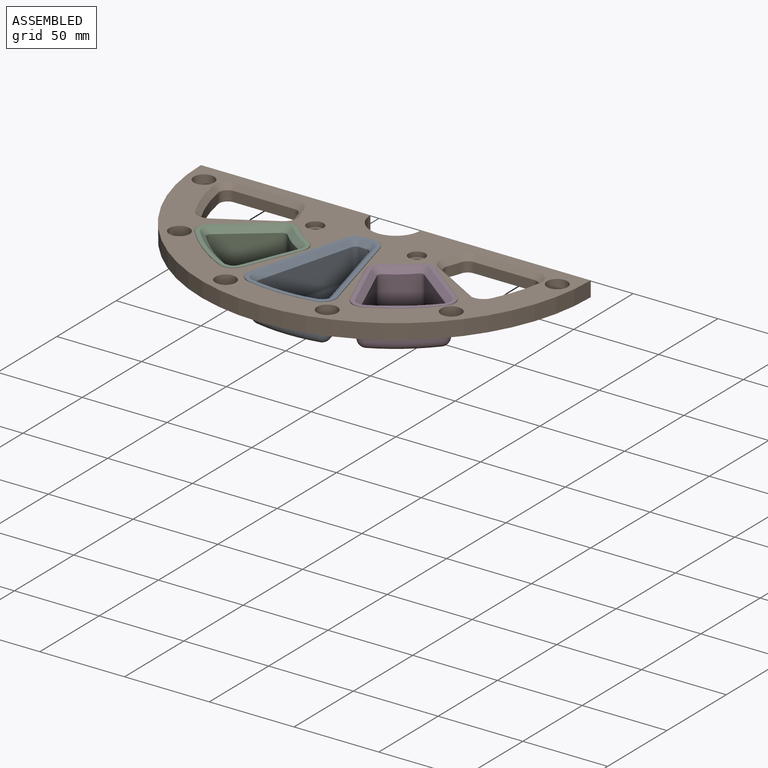
[diagram: assembled view]
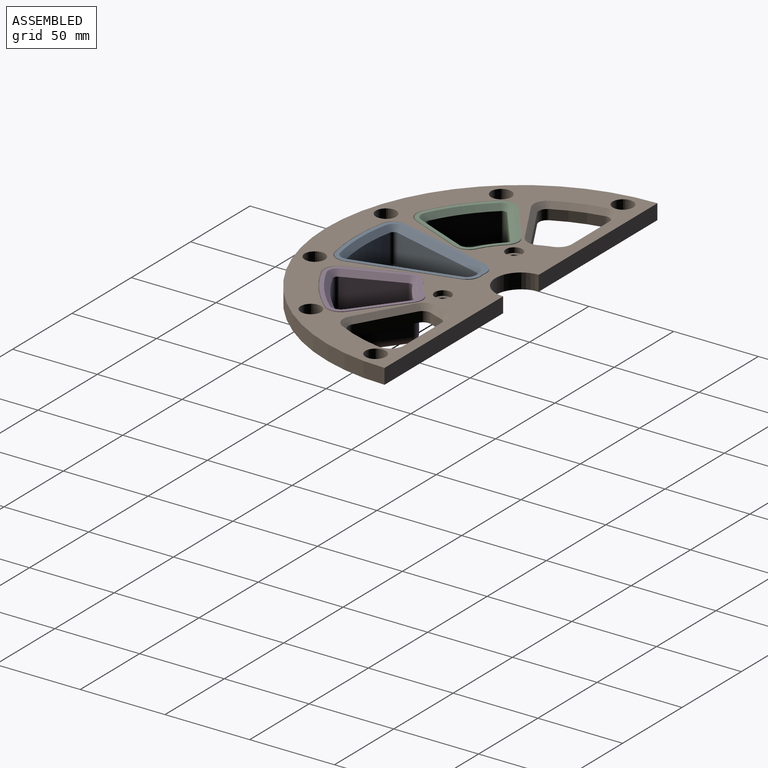
[diagram: assembled view, second angle]
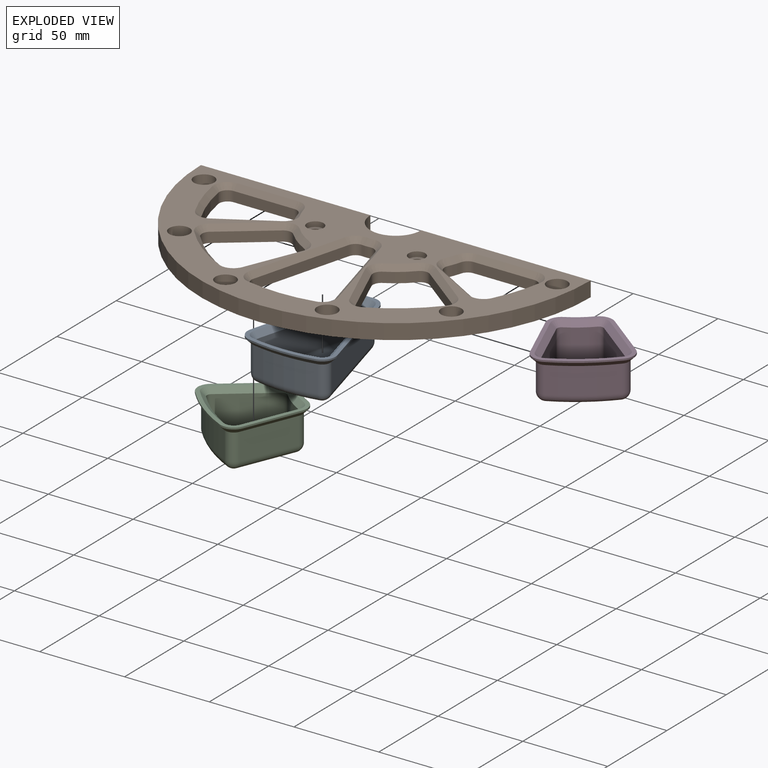
[diagram: exploded view]
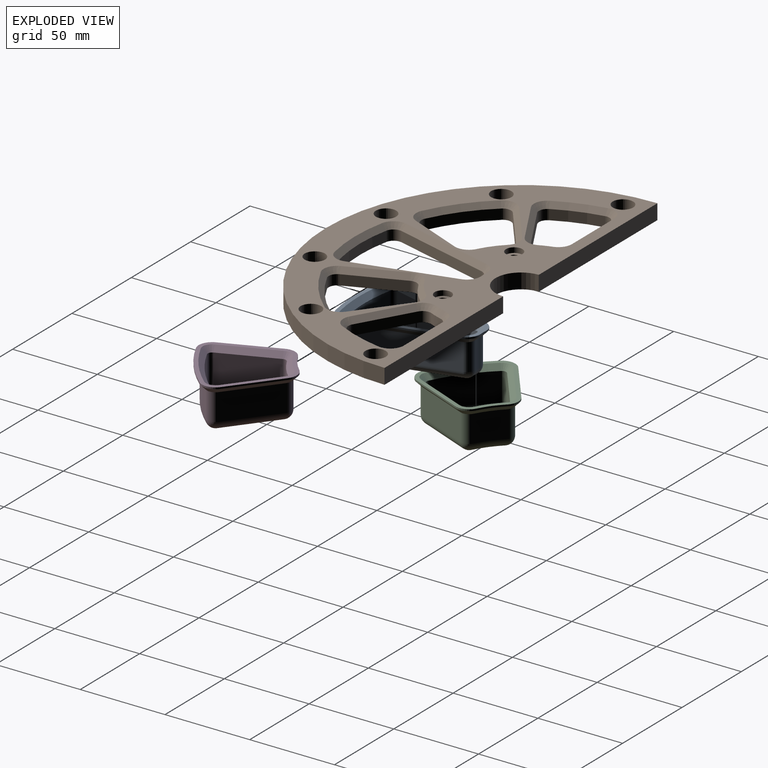
[diagram: exploded view, second angle]
ASSEMBLY  parts=4 mates=2
PART A: 59 faces, bbox 51.9x80.1x25 mm
  f0: plane 75.31x51.86mm, normal (0,0,1), area 487mm2, adj f18,f19,f20,f21,f22,f23,f24,f25
  f1: plane 57.49x17mm, normal (0.97,-0.26,0), area 1011.8mm2, adj f6,f10,f16,f51
  f2: cylinder r=92.2mm len=36.9mm, axis (0,0,-1), area 631.6mm2, adj f8,f10,f12,f55
  f3: plane 57.49x17mm, normal (-0.97,-0.26,0), area 1011.8mm2, adj f9,f12,f14,f58
  f4: cylinder r=27.8mm len=17mm, axis (0,0,-1), area 78.7mm2, adj f7,f14,f16,f54
  f5: plane 59.31x35.86mm, normal (0,0,1), area 1219.3mm2, adj f6,f7,f8,f9
  f6: cylinder r=2.6mm len=58.17mm, axis (-0.26,-0.97,0), area 243.1mm2, adj f1,f5,f11,f17
  f7: torus R=30.4mm, axis (0,0,1), area 19.5mm2, adj f4,f5,f15,f17
  f8: torus R=89.6mm, axis (0,0,1), area 150.2mm2, adj f2,f5,f11,f13
  f9: cylinder r=2.6mm len=58.17mm, axis (-0.26,0.97,0), area 243.1mm2, adj f3,f5,f13,f15
  f10: cylinder r=2.6mm len=17mm, axis (0,0,-1), area 72.1mm2, adj f1,f2,f11,f53
  f11: sphere r=2.6mm, area 11mm2, adj f6,f8,f10
  f12: cylinder r=2.6mm len=17mm, axis (0,0,-1), area 72.1mm2, adj f2,f3,f13,f57
  f13: sphere r=2.6mm, area 11mm2, adj f8,f9,f12
  f14: cylinder r=2.6mm len=17mm, axis (0,0,-1), area 61.5mm2, adj f3,f4,f15,f56
  f15: sphere r=2.6mm, area 9.4mm2, adj f7,f9,f14
  f16: cylinder r=2.6mm len=17mm, axis (0,0,-1), area 61.5mm2, adj f1,f4,f17,f52
  f17: sphere r=2.6mm, area 9.4mm2, adj f6,f7,f16
  f18: cylinder r=8mm len=8.39mm, axis (0,0,1), area 11.1mm2, adj f0,f19,f25,f44
  f19: plane 57.49x15.41mm, normal (-0.97,0.26,0), area 59.5mm2, adj f0,f18,f20,f43
  f20: cylinder r=8mm len=9.91mm, axis (0,0,1), area 13mm2, adj f0,f19,f21,f45
  f21: cylinder r=97.6mm len=39.07mm, axis (0,0,1), area 39.3mm2, adj f0,f20,f22,f47
  f22: cylinder r=8mm len=9.91mm, axis (0,0,1), area 13mm2, adj f0,f21,f23,f49
  f23: plane 57.49x15.41mm, normal (0.97,0.26,0), area 59.5mm2, adj f0,f22,f24,f50
  f24: cylinder r=8mm len=8.39mm, axis (0,0,1), area 11.1mm2, adj f0,f23,f25,f48
  f25: cylinder r=22.4mm len=3.72mm, axis (0,0,1), area 3.7mm2, adj f0,f18,f24,f46
  f26: plane 59.31x35.86mm, normal (0,0,-1), area 1219.3mm2, adj f27,f28,f29,f30
  f27: cylinder r=5mm len=58.79mm, axis (-0.26,-0.97,0), area 467.5mm2, adj f26,f31,f34,f42
  f28: torus R=89.6mm, axis (0,0,1), area 293.7mm2, adj f26,f31,f32,f41
  f29: cylinder r=5mm len=58.79mm, axis (-0.26,0.97,0), area 467.5mm2, adj f26,f32,f33,f39
  f30: torus R=30.4mm, axis (0,0,1), area 35.6mm2, adj f26,f33,f34,f38
  f31: sphere r=5mm, area 40.8mm2, adj f27,f28,f40
  f32: sphere r=5mm, area 40.8mm2, adj f28,f29,f35
  f33: sphere r=5mm, area 34.8mm2, adj f29,f30,f36
  f34: sphere r=5mm, area 34.8mm2, adj f27,f30,f37
  f35: cylinder r=5mm len=16mm, axis (0,0,-1), area 130.5mm2, adj f32,f39,f41,f49
  f36: cylinder r=5mm len=16mm, axis (0,0,-1), area 111.4mm2, adj f33,f38,f39,f48
  f37: cylinder r=5mm len=16mm, axis (0,0,-1), area 111.4mm2, adj f34,f38,f42,f44
  f38: cylinder r=25.4mm len=16mm, axis (0,0,-1), area 67.6mm2, adj f30,f36,f37,f46
  f39: plane 57.49x16mm, normal (0.97,0.26,0), area 952.3mm2, adj f29,f35,f36,f50
  f40: cylinder r=5mm len=16mm, axis (0,0,-1), area 130.5mm2, adj f31,f41,f42,f45
  f41: cylinder r=94.6mm len=37.87mm, axis (0,0,-1), area 610mm2, adj f28,f35,f40,f47
  f42: plane 57.49x16mm, normal (-0.97,0.26,0), area 952.3mm2, adj f27,f37,f40,f43
  f43: plane 58.27x18.3mm, normal (-0.68,0.18,-0.71), area 252.5mm2, adj f19,f42,f44,f45
  f44: cone r=8mm half-angle=45deg, axis (0,0,1), area 38.4mm2, adj f18,f37,f43,f46
  f45: cone r=8mm half-angle=45deg, axis (0,0,1), area 45mm2, adj f20,f40,f43,f47
  f46: cone r=25.4mm half-angle=45deg, axis (0,0,-1), area 16.9mm2, adj f25,f38,f44,f48
  f47: cone r=97.6mm half-angle=45deg, axis (0,0,1), area 164.3mm2, adj f21,f41,f45,f49
  f48: cone r=8mm half-angle=45deg, axis (0,0,1), area 38.4mm2, adj f24,f36,f46,f50
  f49: cone r=8mm half-angle=45deg, axis (0,0,1), area 45mm2, adj f22,f35,f47,f50
  f50: plane 58.27x18.3mm, normal (0.68,0.18,-0.71), area 252.5mm2, adj f23,f39,f48,f49
  f51: plane 58.27x18.3mm, normal (0.68,-0.18,0.71), area 252.5mm2, adj f0,f1,f52,f53
  f52: cone r=2.6mm half-angle=45deg, axis (0,0,1), area 24.2mm2, adj f0,f16,f51,f54
  f53: cone r=2.6mm half-angle=45deg, axis (0,0,1), area 28.4mm2, adj f0,f10,f51,f55
  f54: cone r=24.8mm half-angle=45deg, axis (0,0,-1), area 18.6mm2, adj f0,f4,f52,f56
  f55: cone r=92.2mm half-angle=45deg, axis (0,0,1), area 160.2mm2, adj f0,f2,f53,f57
  f56: cone r=2.6mm half-angle=45deg, axis (0,0,1), area 24.2mm2, adj f0,f14,f54,f58
  f57: cone r=2.6mm half-angle=45deg, axis (0,0,1), area 28.4mm2, adj f0,f12,f55,f58
  f58: plane 58.27x18.3mm, normal (-0.68,-0.18,0.71), area 252.5mm2, adj f0,f3,f56,f57
PART B: 102 faces, bbox 230x115x9 mm
  f0: plane 230x115mm, normal (0,0,1), area 9068.6mm2, adj f4,f5,f6,f7,f9,f11,f56,f57
  f1: plane 230x115mm, normal (0,0,-1), area 11610.8mm2, adj f4,f5,f6,f7,f12,f14,f16,f17
  f2: cylinder r=2.75mm len=5.5mm, axis (0,0,1), area 69.1mm2, adj f8,f15
  f3: cylinder r=2.75mm len=5.5mm, axis (0,0,1), area 69.1mm2, adj f10,f13
  f4: plane 100x9mm, normal (0,1,0), area 900mm2, adj f0,f1,f5,f7
  f5: cylinder r=115mm len=230mm, axis (0,0,-1), area 3251.5mm2, adj f0,f1,f4,f6
  f6: plane 100x9mm, normal (0,1,0), area 900mm2, adj f0,f1,f5,f7
  f7: cylinder r=15mm len=30mm, axis (0,0,-1), area 424.1mm2, adj f0,f1,f4,f6
  f8: plane 9.75x9.75mm, normal (0,0,1), area 50.9mm2, adj f2,f9
  f9: cylinder r=4.88mm len=9.75mm, axis (0,0,1), area 91.9mm2, adj f0,f8
  f10: plane 9.75x9.75mm, normal (0,0,1), area 50.9mm2, adj f3,f11
  f11: cylinder r=4.88mm len=9.75mm, axis (0,0,1), area 91.9mm2, adj f0,f10
  f12: cylinder r=4.1mm len=8.2mm, axis (0,0,-1), area 51.5mm2, adj f1,f13
  f13: plane 8.2x8.2mm, normal (0,0,-1), area 29.1mm2, adj f3,f12
  f14: cylinder r=4.1mm len=8.2mm, axis (0,0,-1), area 51.5mm2, adj f1,f15
  f15: plane 8.2x8.2mm, normal (0,0,-1), area 29.1mm2, adj f2,f14
  f16: plane 58.23x15.6mm, normal (0.97,-0.26,0), area 361.7mm2, adj f1,f52,f55,f74
  f17: cylinder r=95mm len=38.9mm, axis (0,0,1), area 235.1mm2, adj f1,f54,f55,f78
  f18: plane 58.23x15.6mm, normal (-0.97,-0.26,0), area 361.7mm2, adj f1,f53,f54,f77
  f19: cylinder r=25mm len=6mm, axis (0,0,1), area 28.3mm2, adj f1,f52,f53,f73
  f20: cylinder r=95mm len=30.86mm, axis (0,0,1), area 235.1mm2, adj f1,f44,f47,f86
  f21: plane 32.42x13.43mm, normal (-0.92,0.38,0), area 210.5mm2, adj f1,f46,f47,f85
  f22: cylinder r=50mm len=13.48mm, axis (0,0,1), area 102.5mm2, adj f1,f45,f46,f81
  f23: plane 27.84x21.36mm, normal (0.61,-0.79,0), area 210.5mm2, adj f1,f44,f45,f82
  f24: plane 35.83x6mm, normal (0,-1,0), area 215mm2, adj f1,f48,f51,f89
  f25: cylinder r=95mm len=27.02mm, axis (0,0,1), area 171.3mm2, adj f1,f48,f49,f90
  f26: plane 30.39x17.54mm, normal (-0.5,0.87,0), area 210.5mm2, adj f1,f49,f50,f94
  f27: cylinder r=50mm len=7.32mm, axis (0,0,1), area 46.9mm2, adj f1,f50,f51,f93
  f28: plane 35.83x6mm, normal (0,-1,0), area 215mm2, adj f1,f36,f39,f57
  f29: cylinder r=50mm len=7.32mm, axis (0,0,1), area 46.9mm2, adj f1,f38,f39,f58
  f30: plane 30.39x17.54mm, normal (0.5,0.87,0), area 210.5mm2, adj f1,f37,f38,f62
  f31: cylinder r=95mm len=27.02mm, axis (0,0,1), area 171.3mm2, adj f1,f36,f37,f61
  f32: plane 27.84x21.36mm, normal (-0.61,-0.79,0), area 210.5mm2, adj f1,f40,f43,f70
  f33: cylinder r=50mm len=13.48mm, axis (0,0,1), area 102.5mm2, adj f1,f42,f43,f69
  f34: plane 32.42x13.43mm, normal (0.92,0.38,0), area 210.5mm2, adj f1,f41,f42,f65
  f35: cylinder r=95mm len=30.86mm, axis (0,0,1), area 235.1mm2, adj f1,f40,f41,f66
  f36: cylinder r=5mm len=6mm, axis (0,0,1), area 52.1mm2, adj f1,f28,f31,f59
  f37: cylinder r=5mm len=6.96mm, axis (0,0,1), area 48.8mm2, adj f1,f30,f31,f63
  f38: cylinder r=5mm len=6.43mm, axis (0,0,1), area 44.4mm2, adj f1,f29,f30,f60
  f39: cylinder r=5mm len=6mm, axis (0,0,1), area 38.8mm2, adj f1,f28,f29,f56
  f40: cylinder r=5mm len=7.23mm, axis (0,0,1), area 48.8mm2, adj f1,f32,f35,f68
  f41: cylinder r=5mm len=6.79mm, axis (0,0,1), area 48.8mm2, adj f1,f34,f35,f64
  f42: cylinder r=5mm len=6.34mm, axis (0,0,1), area 44.4mm2, adj f1,f33,f34,f67
  f43: cylinder r=5mm len=6.72mm, axis (0,0,1), area 44.4mm2, adj f1,f32,f33,f71
  f44: cylinder r=5mm len=7.23mm, axis (0,0,1), area 48.8mm2, adj f1,f20,f23,f84
  f45: cylinder r=5mm len=6.72mm, axis (0,0,1), area 44.4mm2, adj f1,f22,f23,f80
  f46: cylinder r=5mm len=6.34mm, axis (0,0,1), area 44.4mm2, adj f1,f21,f22,f83
  f47: cylinder r=5mm len=6.79mm, axis (0,0,1), area 48.8mm2, adj f1,f20,f21,f87
  f48: cylinder r=5mm len=6mm, axis (0,0,1), area 52.1mm2, adj f1,f24,f25,f88
  f49: cylinder r=5mm len=6.96mm, axis (0,0,1), area 48.8mm2, adj f1,f25,f26,f92
  f50: cylinder r=5mm len=6.43mm, axis (0,0,1), area 44.4mm2, adj f1,f26,f27,f95
  f51: cylinder r=5mm len=6mm, axis (0,0,1), area 38.8mm2, adj f1,f24,f27,f91
  f52: cylinder r=5mm len=6mm, axis (0,0,1), area 42.1mm2, adj f1,f16,f19,f72
  f53: cylinder r=5mm len=6mm, axis (0,0,1), area 42.1mm2, adj f1,f18,f19,f75
  f54: cylinder r=5mm len=6.19mm, axis (0,0,1), area 48.8mm2, adj f1,f17,f18,f79
  f55: cylinder r=5mm len=6.19mm, axis (0,0,1), area 48.8mm2, adj f1,f16,f17,f76
  f56: cone r=8mm half-angle=45deg, axis (0,0,1), area 35.7mm2, adj f0,f39,f57,f58
  f57: plane 35.83x3mm, normal (0,-0.71,0.71), area 152mm2, adj f0,f28,f56,f59
  f58: cone r=50mm half-angle=45deg, axis (0,0,-1), area 32.2mm2, adj f0,f29,f56,f60
  f59: cone r=8mm half-angle=45deg, axis (0,0,1), area 47.9mm2, adj f0,f36,f57,f61
  f60: cone r=8mm half-angle=45deg, axis (0,0,1), area 40.8mm2, adj f0,f38,f58,f62
  f61: cone r=98mm half-angle=45deg, axis (0,0,1), area 123.1mm2, adj f0,f31,f59,f63
  f62: plane 31.89x20.14mm, normal (0.35,0.61,0.71), area 148.9mm2, adj f0,f30,f60,f63
  f63: cone r=8mm half-angle=45deg, axis (0,0,1), area 44.9mm2, adj f0,f37,f61,f62
  f64: cone r=8mm half-angle=45deg, axis (0,0,1), area 44.9mm2, adj f0,f41,f65,f66
  f65: plane 33.57x16.2mm, normal (0.65,0.27,0.71), area 148.9mm2, adj f0,f34,f64,f67
  f66: cone r=95mm half-angle=45deg, axis (0,0,1), area 168.9mm2, adj f0,f35,f64,f68
  f67: cone r=8mm half-angle=45deg, axis (0,0,1), area 40.8mm2, adj f0,f42,f65,f69
  f68: cone r=8mm half-angle=45deg, axis (0,0,1), area 44.9mm2, adj f0,f40,f66,f70
  f69: cone r=50mm half-angle=45deg, axis (0,0,-1), area 70.3mm2, adj f0,f33,f67,f71
  f70: plane 29.66x23.74mm, normal (-0.43,-0.56,0.71), area 148.9mm2, adj f0,f32,f68,f71
  f71: cone r=8mm half-angle=45deg, axis (0,0,1), area 40.8mm2, adj f0,f43,f69,f70
  f72: cone r=8mm half-angle=45deg, axis (0,0,1), area 38.7mm2, adj f0,f52,f73,f74
  f73: cone r=22mm half-angle=45deg, axis (0,0,-1), area 18.8mm2, adj f0,f19,f72,f75
  f74: plane 59x18.5mm, normal (0.68,-0.18,0.71), area 255.7mm2, adj f0,f16,f72,f76
  f75: cone r=8mm half-angle=45deg, axis (0,0,1), area 38.7mm2, adj f0,f53,f73,f77
  f76: cone r=8mm half-angle=45deg, axis (0,0,1), area 44.9mm2, adj f0,f55,f74,f78
  f77: plane 59x18.5mm, normal (-0.68,-0.18,0.71), area 255.7mm2, adj f0,f18,f75,f79
  f78: cone r=95mm half-angle=45deg, axis (0,0,1), area 168.9mm2, adj f0,f17,f76,f79
  f79: cone r=8mm half-angle=45deg, axis (0,0,1), area 44.9mm2, adj f0,f54,f77,f78
  f80: cone r=8mm half-angle=45deg, axis (0,0,1), area 40.8mm2, adj f0,f45,f81,f82
  f81: cone r=47mm half-angle=45deg, axis (0,0,-1), area 70.3mm2, adj f0,f22,f80,f83
  f82: plane 29.66x23.74mm, normal (0.43,-0.56,0.71), area 148.9mm2, adj f0,f23,f80,f84
  f83: cone r=8mm half-angle=45deg, axis (0,0,1), area 40.8mm2, adj f0,f46,f81,f85
  f84: cone r=8mm half-angle=45deg, axis (0,0,1), area 44.9mm2, adj f0,f44,f82,f86
  f85: plane 33.57x16.2mm, normal (-0.65,0.27,0.71), area 148.9mm2, adj f0,f21,f83,f87
  f86: cone r=98mm half-angle=45deg, axis (0,0,1), area 168.9mm2, adj f0,f20,f84,f87
  f87: cone r=8mm half-angle=45deg, axis (0,0,1), area 44.9mm2, adj f0,f47,f85,f86
  f88: cone r=8mm half-angle=45deg, axis (0,0,1), area 47.9mm2, adj f0,f48,f89,f90
  f89: plane 35.83x3mm, normal (0,-0.71,0.71), area 152mm2, adj f0,f24,f88,f91
  f90: cone r=95mm half-angle=45deg, axis (0,0,1), area 123.1mm2, adj f0,f25,f88,f92
  f91: cone r=8mm half-angle=45deg, axis (0,0,1), area 35.7mm2, adj f0,f51,f89,f93
  f92: cone r=8mm half-angle=45deg, axis (0,0,1), area 44.9mm2, adj f0,f49,f90,f94
  f93: cone r=47mm half-angle=45deg, axis (0,0,-1), area 32.2mm2, adj f0,f27,f91,f95
  f94: plane 31.89x20.14mm, normal (-0.35,0.61,0.71), area 148.9mm2, adj f0,f26,f92,f95
  f95: cone r=8mm half-angle=45deg, axis (0,0,1), area 40.8mm2, adj f0,f50,f93,f94
  f96: cylinder r=6mm len=12mm, axis (0,0,-1), area 339.3mm2, adj f0,f1
  f97: cylinder r=6mm len=12mm, axis (0,0,-1), area 339.3mm2, adj f0,f1
  f98: cylinder r=6mm len=12mm, axis (0,0,-1), area 339.3mm2, adj f0,f1
  f99: cylinder r=6mm len=12mm, axis (0,0,-1), area 339.3mm2, adj f0,f1
  f100: cylinder r=6mm len=12mm, axis (0,0,-1), area 339.3mm2, adj f0,f1
  f101: cylinder r=6mm len=12mm, axis (0,0,-1), area 339.3mm2, adj f0,f1
PART C: 59 faces, bbox 51.9x55.7x25 mm
  f0: plane 51.86x50.95mm, normal (0,0,1), area 397.5mm2, adj f18,f19,f20,f21,f22,f23,f24,f25
  f1: plane 33.13x17mm, normal (0.97,-0.26,0), area 583.1mm2, adj f6,f10,f16,f51
  f2: cylinder r=92.2mm len=36.9mm, axis (0,0,-1), area 631.6mm2, adj f8,f10,f12,f55
  f3: plane 33.13x17mm, normal (-0.97,-0.26,0), area 583.1mm2, adj f9,f12,f14,f58
  f4: cylinder r=52.8mm len=17.26mm, axis (0,0,-1), area 294.7mm2, adj f7,f14,f16,f54
  f5: plane 35.86x34.95mm, normal (0,0,1), area 928.5mm2, adj f6,f7,f8,f9
  f6: cylinder r=2.6mm len=33.81mm, axis (-0.26,-0.97,0), area 140.1mm2, adj f1,f5,f11,f17
  f7: torus R=55.4mm, axis (0,0,1), area 72.1mm2, adj f4,f5,f15,f17
  f8: torus R=89.6mm, axis (0,0,1), area 150.2mm2, adj f2,f5,f11,f13
  f9: cylinder r=2.6mm len=33.81mm, axis (-0.26,0.97,0), area 140.1mm2, adj f3,f5,f13,f15
  f10: cylinder r=2.6mm len=17mm, axis (0,0,-1), area 72.1mm2, adj f1,f2,f11,f53
  f11: sphere r=2.6mm, area 11mm2, adj f6,f8,f10
  f12: cylinder r=2.6mm len=17mm, axis (0,0,-1), area 72.1mm2, adj f2,f3,f13,f57
  f13: sphere r=2.6mm, area 11mm2, adj f8,f9,f12
  f14: cylinder r=2.6mm len=17mm, axis (0,0,-1), area 65.1mm2, adj f3,f4,f15,f56
  f15: sphere r=2.6mm, area 10mm2, adj f7,f9,f14
  f16: cylinder r=2.6mm len=17mm, axis (0,0,-1), area 65.1mm2, adj f1,f4,f17,f52
  f17: sphere r=2.6mm, area 10mm2, adj f6,f7,f16
  f18: plane 33.13x8.88mm, normal (-0.97,0.26,0), area 34.3mm2, adj f0,f19,f25,f43
  f19: cylinder r=8mm len=9.91mm, axis (0,0,1), area 13mm2, adj f0,f18,f20,f45
  f20: cylinder r=97.6mm len=39.07mm, axis (0,0,1), area 39.3mm2, adj f0,f19,f21,f47
  f21: cylinder r=8mm len=9.91mm, axis (0,0,1), area 13mm2, adj f0,f20,f22,f49
  f22: plane 33.13x8.88mm, normal (0.97,0.26,0), area 34.3mm2, adj f0,f21,f23,f50
  f23: cylinder r=8mm len=9.04mm, axis (0,0,1), area 11.8mm2, adj f0,f22,f24,f48
  f24: cylinder r=47.4mm len=15.49mm, axis (0,0,1), area 15.6mm2, adj f0,f23,f25,f46
  f25: cylinder r=8mm len=9.04mm, axis (0,0,1), area 11.8mm2, adj f0,f18,f24,f44
  f26: plane 35.86x34.95mm, normal (0,0,-1), area 928.5mm2, adj f27,f28,f29,f30
  f27: cylinder r=5mm len=34.43mm, axis (-0.26,-0.97,0), area 269.4mm2, adj f26,f31,f34,f42
  f28: torus R=89.6mm, axis (0,0,1), area 293.7mm2, adj f26,f31,f32,f41
  f29: cylinder r=5mm len=34.43mm, axis (-0.26,0.97,0), area 269.4mm2, adj f26,f32,f33,f39
  f30: torus R=55.4mm, axis (0,0,1), area 134.7mm2, adj f26,f33,f34,f38
  f31: sphere r=5mm, area 40.8mm2, adj f27,f28,f40
  f32: sphere r=5mm, area 40.8mm2, adj f28,f29,f35
  f33: sphere r=5mm, area 36.8mm2, adj f29,f30,f36
  f34: sphere r=5mm, area 36.8mm2, adj f27,f30,f37
  f35: cylinder r=5mm len=16mm, axis (0,0,-1), area 130.5mm2, adj f32,f39,f41,f49
  f36: cylinder r=5mm len=16mm, axis (0,0,-1), area 117.9mm2, adj f33,f38,f39,f48
  f37: cylinder r=5mm len=16mm, axis (0,0,-1), area 117.9mm2, adj f34,f38,f42,f44
  f38: cylinder r=50.4mm len=16.47mm, axis (0,0,-1), area 264.8mm2, adj f30,f36,f37,f46
  f39: plane 33.13x16mm, normal (0.97,0.26,0), area 548.8mm2, adj f29,f35,f36,f50
  f40: cylinder r=5mm len=16mm, axis (0,0,-1), area 130.5mm2, adj f31,f41,f42,f45
  f41: cylinder r=94.6mm len=37.87mm, axis (0,0,-1), area 610mm2, adj f28,f35,f40,f47
  f42: plane 33.13x16mm, normal (-0.97,0.26,0), area 548.8mm2, adj f27,f37,f40,f43
  f43: plane 33.91x11.78mm, normal (-0.68,0.18,-0.71), area 145.5mm2, adj f18,f42,f44,f45
  f44: cone r=8mm half-angle=45deg, axis (0,0,1), area 40.6mm2, adj f25,f37,f43,f46
  f45: cone r=8mm half-angle=45deg, axis (0,0,1), area 45mm2, adj f19,f40,f43,f47
  f46: cone r=50.4mm half-angle=45deg, axis (0,0,-1), area 68.1mm2, adj f24,f38,f44,f48
  f47: cone r=97.6mm half-angle=45deg, axis (0,0,1), area 164.3mm2, adj f20,f41,f45,f49
  f48: cone r=8mm half-angle=45deg, axis (0,0,1), area 40.6mm2, adj f23,f36,f46,f50
  f49: cone r=8mm half-angle=45deg, axis (0,0,1), area 45mm2, adj f21,f35,f47,f50
  f50: plane 33.91x11.78mm, normal (0.68,0.18,-0.71), area 145.5mm2, adj f22,f39,f48,f49
  f51: plane 33.91x11.78mm, normal (0.68,-0.18,0.71), area 145.5mm2, adj f0,f1,f52,f53
  f52: cone r=2.6mm half-angle=45deg, axis (0,0,1), area 25.6mm2, adj f0,f16,f51,f54
  f53: cone r=2.6mm half-angle=45deg, axis (0,0,1), area 28.4mm2, adj f0,f10,f51,f55
  f54: cone r=49.8mm half-angle=45deg, axis (0,0,-1), area 71.5mm2, adj f0,f4,f52,f56
  f55: cone r=92.2mm half-angle=45deg, axis (0,0,1), area 160.2mm2, adj f0,f2,f53,f57
  f56: cone r=2.6mm half-angle=45deg, axis (0,0,1), area 25.6mm2, adj f0,f14,f54,f58
  f57: cone r=2.6mm half-angle=45deg, axis (0,0,1), area 28.4mm2, adj f0,f12,f55,f58
  f58: plane 33.91x11.78mm, normal (-0.68,-0.18,0.71), area 145.5mm2, adj f0,f3,f56,f57
PART D: same geometry as C
PLACE A t=(0,0.03,-25)mm
PLACE B t=(0,0,-9)mm
PLACE C rot(axis=(0,0,-1),37.5deg) t=(0,0,-25)mm
PLACE D rot(axis=(0,0,1),37.5deg) t=(0,0,-25)mm
MATE revolute B.f7 <-> C.f24  axis (0,0,1) through (0,0,0)mm
MATE fastened A.f0 <-> B.f0  axis (0,0,1) through (0,-64.65,0)mm
